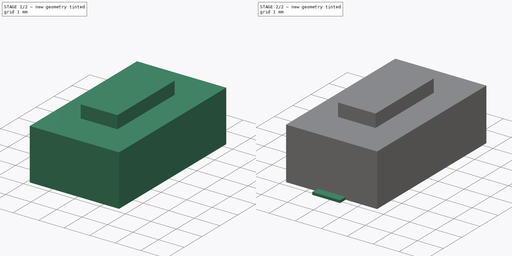
[diagram: build sequence overview — one tinted view per stage of 2, left to right]
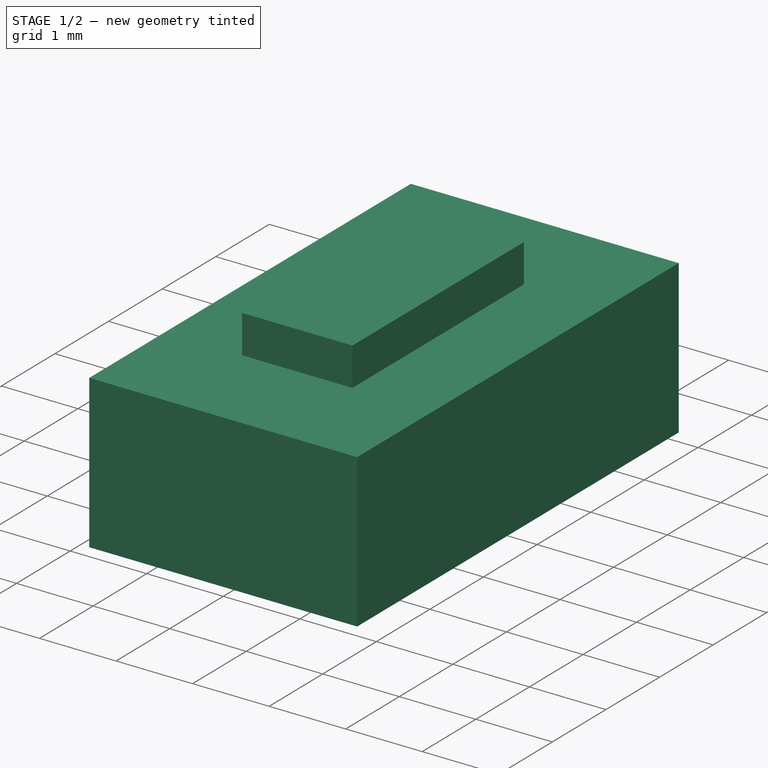
[diagram: stage 1 of 2 — iso view after this stage's code; geometry added in this stage tinted green]
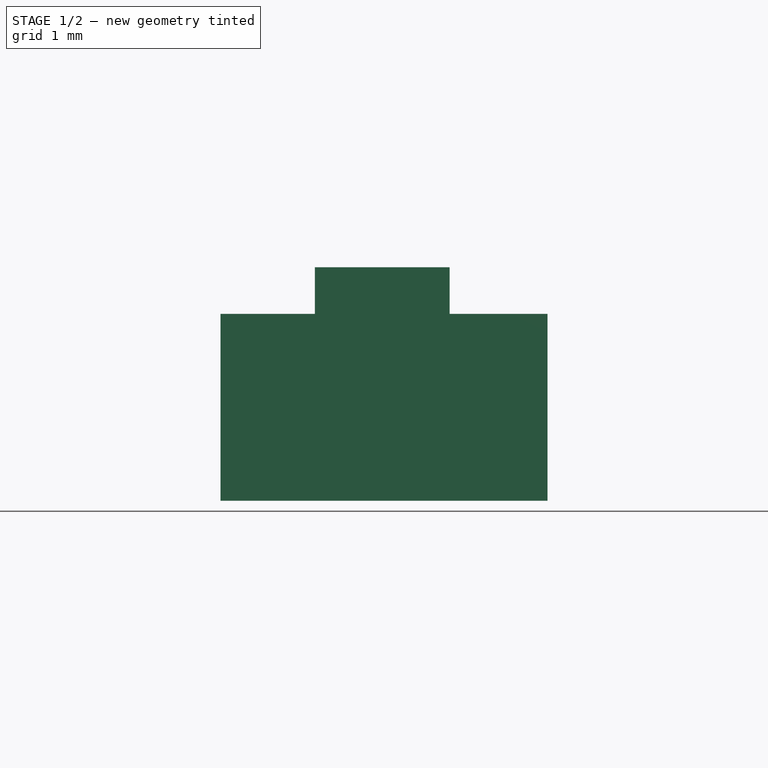
[diagram: stage 1 of 2 — front view after this stage's code; geometry added in this stage tinted green]
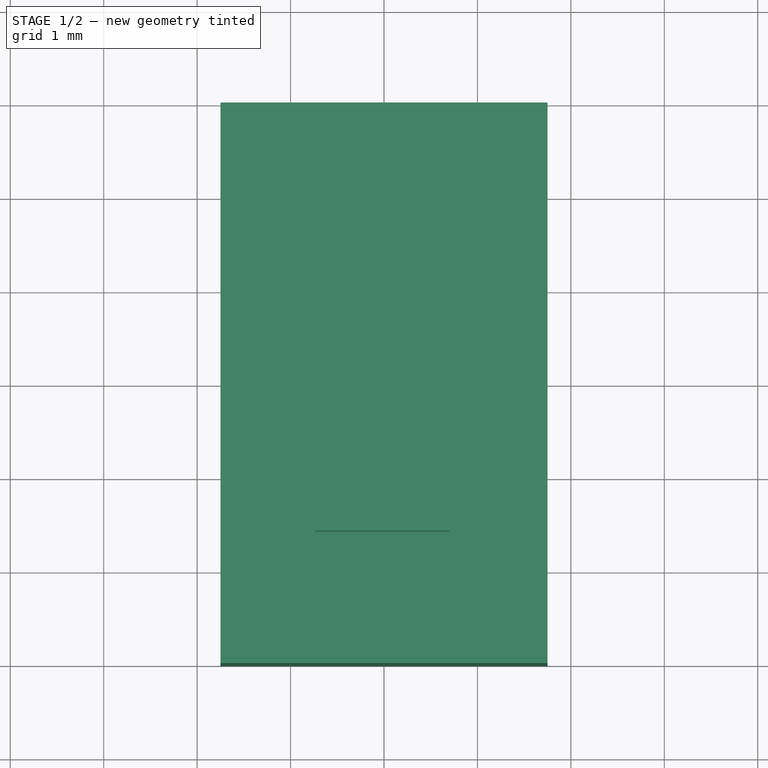
[diagram: stage 1 of 2 — top view after this stage's code; geometry added in this stage tinted green]
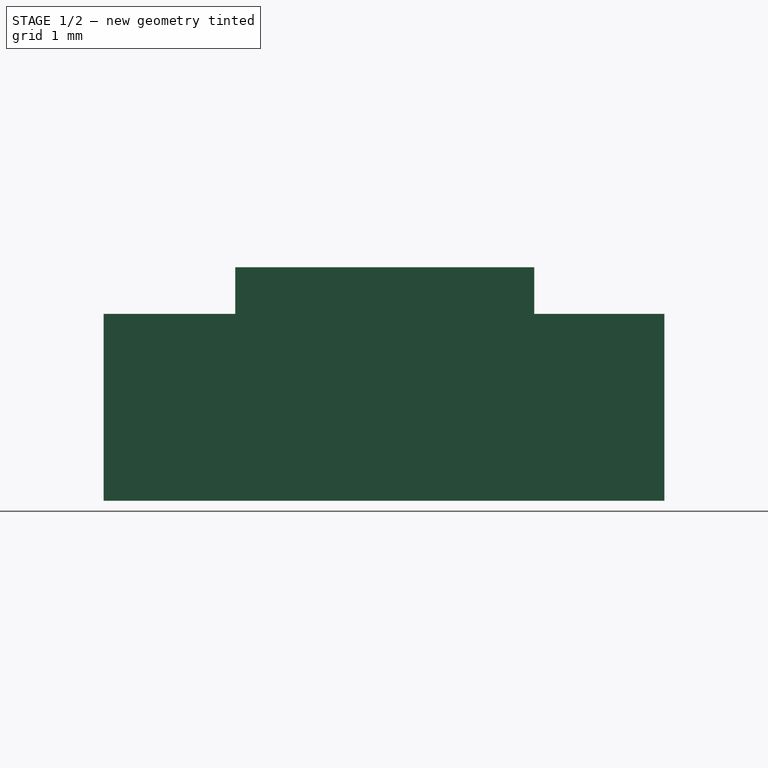
[diagram: stage 1 of 2 — right view after this stage's code; geometry added in this stage tinted green]
FCSTD DOCUMENT  (FreeCAD 0.21R33771 (Git))
Label: smd_switch
License: All rights reserved
LicenseURL: http://en.wikipedia.org/wiki/All_rights_reserved
objects: Sketcher::SketchObject×3, PartDesign::Pad×3, PartDesign::Body×1
note: 10 computed .brp shape members not serialized (recipe doc carries the construction recipe); baked Part::Feature solids carry a one-line shape summary decoded from their .brp

FEATURE [Sketcher::SketchObject] Sketch
  FullyConstrained = false
  MapMode = 5
  Support = -> [XY_Plane]
  expr: Constraints[4] = 3.5 / 2
  expr: Constraints[6] = 6 / 2
  sketch-geometry (8):
    g0: LineSegment StartX=0 StartY=3 StartZ=0 EndX=1.75 EndY=3 EndZ=0
    g1: LineSegment StartX=1.75 StartY=3 StartZ=0 EndX=1.75 EndY=0 EndZ=0
    g2: LineSegment StartX=-1.75 StartY=3 StartZ=0 EndX=-1.75 EndY=0 EndZ=0
    g3: LineSegment StartX=0 StartY=3 StartZ=0 EndX=-1.75 EndY=3 EndZ=0
    g4: LineSegment StartX=1.75 StartY=-3 StartZ=0 EndX=1.75 EndY=0 EndZ=0
    g5: LineSegment StartX=0 StartY=-3 StartZ=0 EndX=1.75 EndY=-3 EndZ=0
    g6: LineSegment StartX=-1.75 StartY=-3 StartZ=0 EndX=-1.75 EndY=0 EndZ=0
    g7: LineSegment StartX=0 StartY=-3 StartZ=0 EndX=-1.75 EndY=-3 EndZ=0
  constraints (22):
    c: PointOnObject(g0,g-2)
    c: Horizontal(g0)
    c: PointOnObject(g1,g-1)
    c: Vertical(g1)
    c: Distance(g0) = 1.75
    c: Coincident(g1,g0)
    c: Distance(g1) = 3
    c: Horizontal(g3)
    c: Vertical(g2)
    c: Distance(g3) = 1.75
    c: Coincident(g2,g3)
    c: Distance(g2) = 3
    c: Horizontal(g5)
    c: Vertical(g4)
    c: Distance(g5) = 1.75
    c: Coincident(g4,g5)
    c: Distance(g4) = 3
    c: Horizontal(g7)
    c: Vertical(g6)
    c: Distance(g7) = 1.75
    c: Coincident(g6,g7)
    c: Distance(g6) = 3
FEATURE [PartDesign::Pad] Pad
  Direction = (0,0,1)
  Length = 2
  Length2 = 10
  Profile = -> Sketch
  ReferenceAxis = -> Sketch [N_Axis]
  Type = 0
FEATURE [Sketcher::SketchObject] Sketch001
  AttachmentOffset = pos=(0.5,-2.5,2) rot=(0,0,1;0rad)
  FullyConstrained = false
  MapMode = 5
  Placement = pos=(0.5,-2.5,2) rot=(0,0,1;0rad)
  Support = -> [XY_Plane]
  sketch-geometry (4):
    g0: LineSegment StartX=-1.23975 StartY=4.10797 StartZ=0 EndX=0.202068 EndY=4.10797 EndZ=0
    g1: LineSegment StartX=0.202068 StartY=4.10797 StartZ=0 EndX=0.202068 EndY=0.907605 EndZ=0
    g2: LineSegment StartX=0.202068 StartY=0.907605 StartZ=0 EndX=-1.23975 EndY=0.907605 EndZ=0
    g3: LineSegment StartX=-1.23975 StartY=0.907605 StartZ=0 EndX=-1.23975 EndY=4.10797 EndZ=0
  constraints (8):
    c: Coincident(g0,g1)
    c: Coincident(g1,g2)
    c: Coincident(g2,g3)
    c: Coincident(g3,g0)
    c: Horizontal(g0)
    c: Horizontal(g2)
    c: Vertical(g1)
    c: Vertical(g3)
FEATURE [PartDesign::Pad] Pad001
  BaseFeature = -> Pad
  Direction = (0,0,1)
  Length = 0.5
  Length2 = 10
  Profile = -> Sketch001
  ReferenceAxis = -> Sketch001 [N_Axis]
  Type = 0
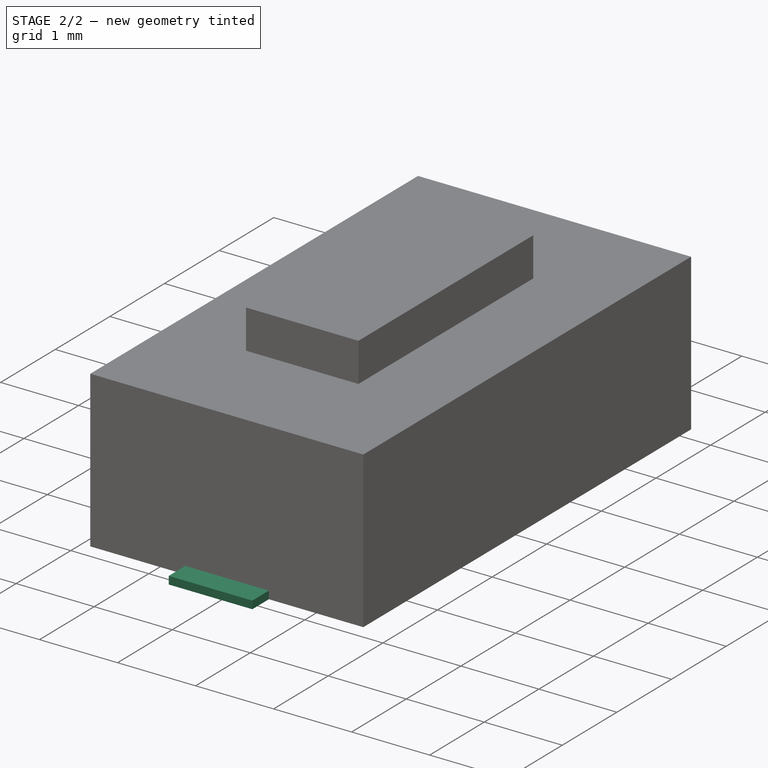
[diagram: stage 2 of 2 — iso view after this stage's code; geometry added in this stage tinted green]
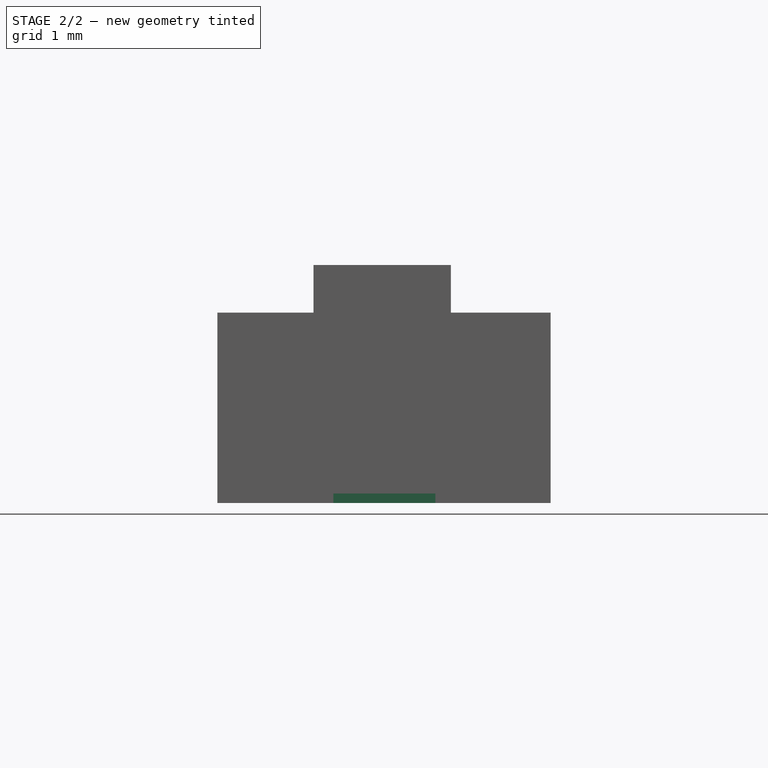
[diagram: stage 2 of 2 — front view after this stage's code; geometry added in this stage tinted green]
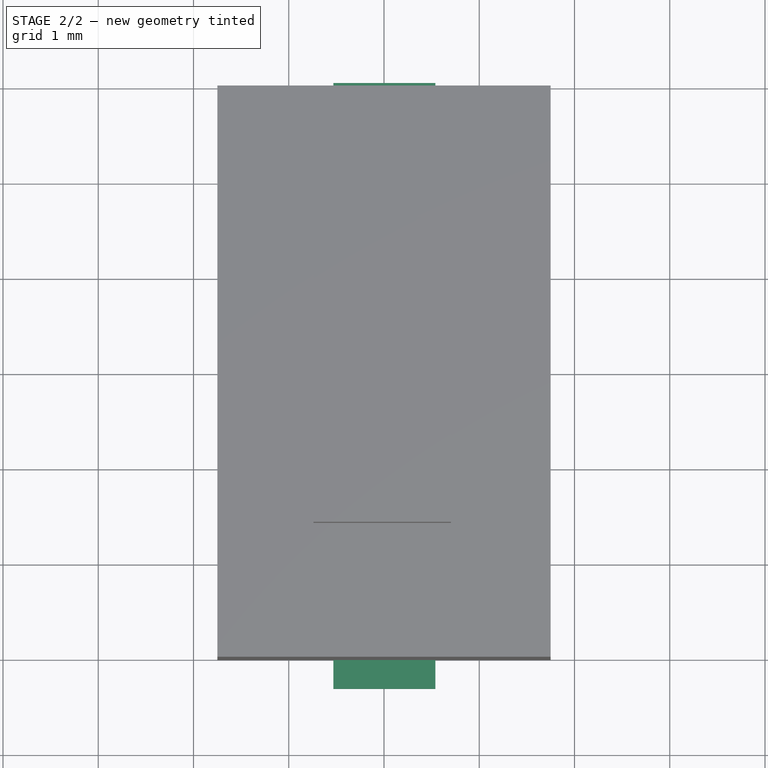
[diagram: stage 2 of 2 — top view after this stage's code; geometry added in this stage tinted green]
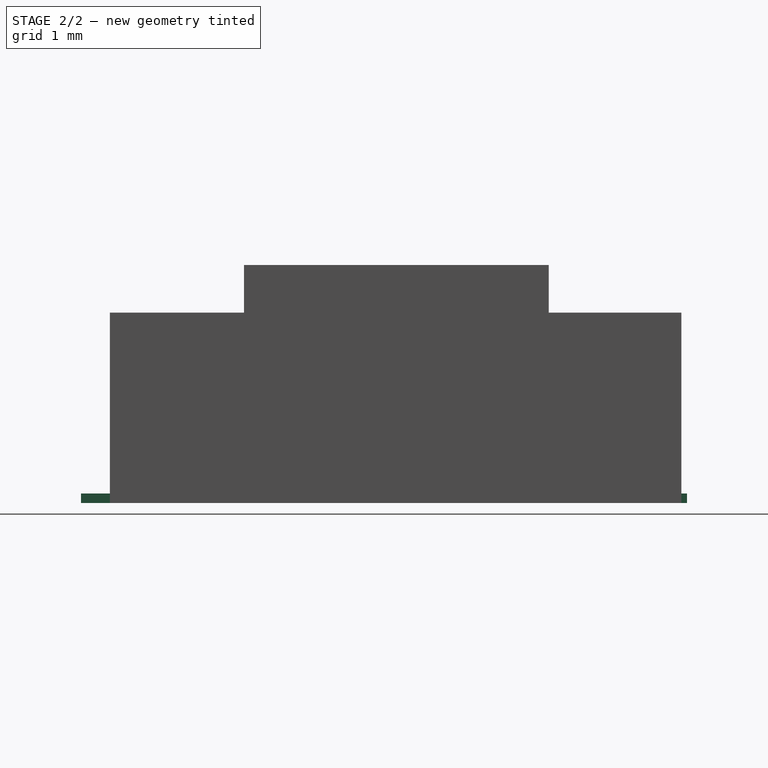
[diagram: stage 2 of 2 — right view after this stage's code; geometry added in this stage tinted green]
FEATURE [Sketcher::SketchObject] Sketch002
  FullyConstrained = false
  MapMode = 5
  Support = -> [XY_Plane]
  sketch-geometry (4):
    g0: LineSegment StartX=-0.531203 StartY=3.05893 StartZ=0 EndX=0.539058 EndY=3.05893 EndZ=0
    g1: LineSegment StartX=0.539058 StartY=3.05893 StartZ=0 EndX=0.539058 EndY=-3.30317 EndZ=0
    g2: LineSegment StartX=0.539058 StartY=-3.30317 StartZ=0 EndX=-0.531203 EndY=-3.30317 EndZ=0
    g3: LineSegment StartX=-0.531203 StartY=-3.30317 StartZ=0 EndX=-0.531203 EndY=3.05893 EndZ=0
  constraints (8):
    c: Coincident(g0,g1)
    c: Coincident(g1,g2)
    c: Coincident(g2,g3)
    c: Coincident(g3,g0)
    c: Horizontal(g0)
    c: Horizontal(g2)
    c: Vertical(g1)
    c: Vertical(g3)
FEATURE [PartDesign::Pad] Pad002
  BaseFeature = -> Pad001
  Direction = (0,0,1)
  Length = 0.1
  Length2 = 10
  Profile = -> Sketch002
  ReferenceAxis = -> Sketch002 [N_Axis]
  Type = 0
FEATURE [PartDesign::Body] Body
  Group = -> [Sketch,Pad,Sketch001,Pad001,Sketch002,Pad002]
  Origin = -> Origin
  Tip = -> Pad002
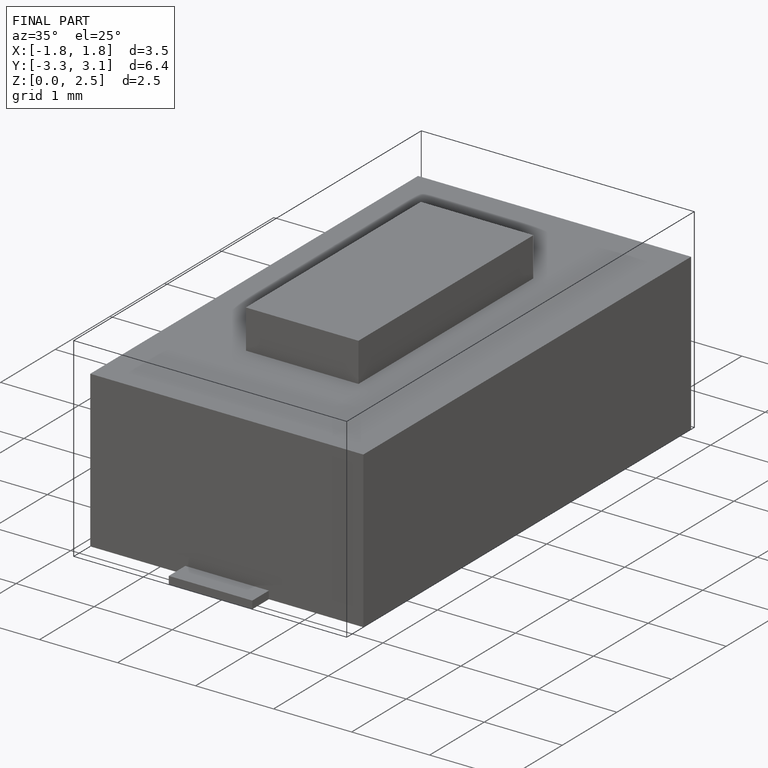
[diagram: finished part — iso view with bounding-box wireframe]
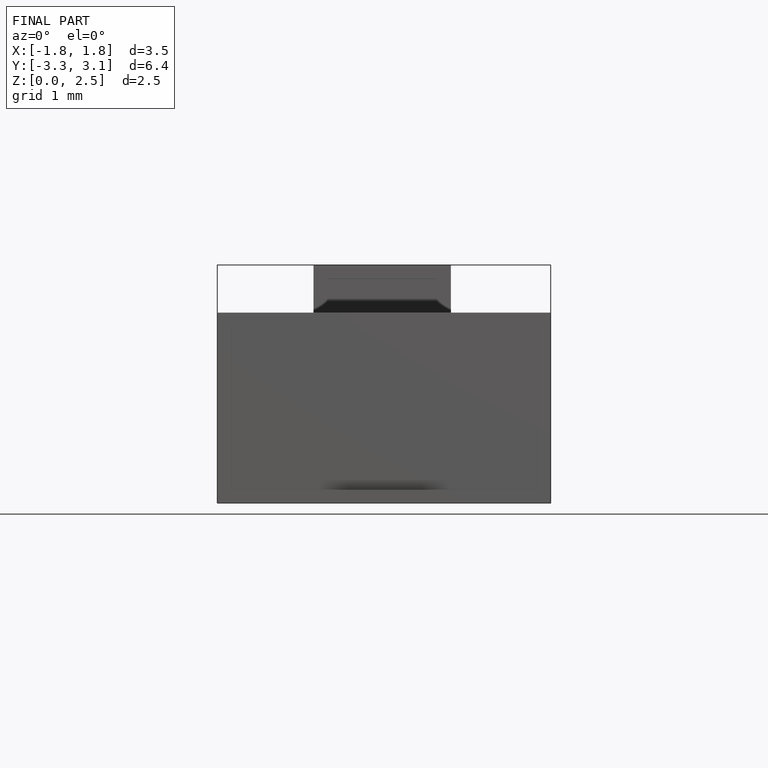
[diagram: finished part — front view with bounding-box wireframe]
